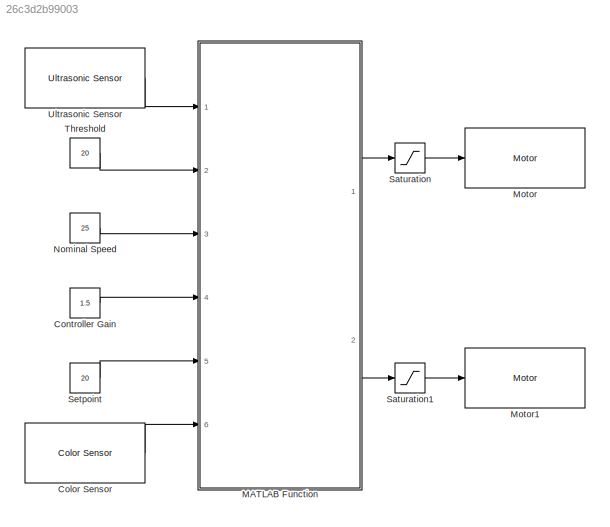
MODEL slx_26c3d2b99003
KIND model
CONFIG AbsTol = auto
CONFIG EnableMultiTasking = off
CONFIG FixedStep = auto
CONFIG MaxStep = auto
CONFIG MinStep = auto
CONFIG RelTol = 1e-3
CONFIG SampleTimeConstraint = Unconstrained
CONFIG Solver = VariableStepAuto
CONFIG SolverName = VariableStepAuto
CONFIG StartTime = 0.0
CONFIG StopTime = 10.0
BLOCK [Reference] Color Sensor  REF=legoev3lib/Color Sensor
  Ports = [0, 1]
  SourceBlock = legoev3lib/Color Sensor
  SourceType = LEGO MINDSTORMS EV3 Color Sensor
BLOCK [Constant] Controller Gain 
  Value = 1.5
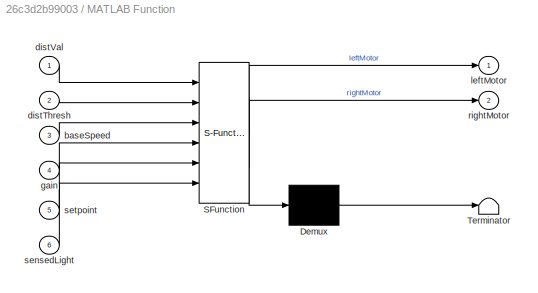
BLOCK [SubSystem] MATLAB Function
  ErrorFcn = Stateflow.Translate.translate
  PermitHierarchicalResolution = ExplicitOnly
  Ports = [6, 2]
  RequestExecContextInheritance = off
  SFBlockType = MATLAB Function
  TreatAsAtomicUnit = on
  Variant = off
BLOCK [Demux] MATLAB Function/ Demux 
  Outputs = 1
  Ports = [1, 1]
BLOCK [S-Function] MATLAB Function/ SFunction 
  EnableBusSupport = off
  FunctionName = sf_sfun
  PortCounts = [6 3]
  Ports = [6, 3]
  SFcnIsStateOwnerBlock = off
  SFunctionDeploymentMode = off
  Tag = Stateflow S-Function control 2
BLOCK [Terminator] MATLAB Function/ Terminator 
BLOCK [Inport] MATLAB Function/baseSpeed
  IconDisplay = Port number
  Port = 3
BLOCK [Inport] MATLAB Function/distThresh
  IconDisplay = Port number
  Port = 2
BLOCK [Inport] MATLAB Function/distVal
  IconDisplay = Port number
BLOCK [Inport] MATLAB Function/gain
  IconDisplay = Port number
  Port = 4
BLOCK [Outport] MATLAB Function/leftMotor
  IconDisplay = Port number
BLOCK [Outport] MATLAB Function/rightMotor
  IconDisplay = Port number
  Port = 2
BLOCK [Inport] MATLAB Function/sensedLight
  IconDisplay = Port number
  Port = 6
BLOCK [Inport] MATLAB Function/setpoint
  IconDisplay = Port number
  Port = 5
BLOCK [Reference] Motor  REF=legoev3lib/Motor
  Ports = [1]
  SourceBlock = legoev3lib/Motor
  SourceType = LEGO MINDSTORMS EV3 Motor
BLOCK [Reference] Motor1  REF=legoev3lib/Motor
  Ports = [1]
  SourceBlock = legoev3lib/Motor
  SourceType = LEGO MINDSTORMS EV3 Motor
BLOCK [Constant] Nominal Speed 
  Value = 25
BLOCK [Saturate] Saturation
  InputPortMap = u0
  LowerLimit = -100
  Ports = [1, 1]
  UpperLimit = 100
BLOCK [Saturate] Saturation1
  InputPortMap = u0
  LowerLimit = -100
  Ports = [1, 1]
  UpperLimit = 100
BLOCK [Constant] Setpoint
  Value = 20
BLOCK [Constant] Threshold 
  Value = 20
BLOCK [Reference] Ultrasonic Sensor  REF=legoev3lib/Ultrasonic Sensor
  Ports = [0, 1]
  SourceBlock = legoev3lib/Ultrasonic Sensor
  SourceType = LEGO MINDSTORMS EV3 Ultrasonic Sensor
LINE Color Sensor:1 -> MATLAB Function:6
LINE Controller Gain :1 -> MATLAB Function:4
LINE MATLAB Function:1 -> Saturation:1
LINE MATLAB Function:2 -> Saturation1:1
LINE Nominal Speed :1 -> MATLAB Function:3
LINE Saturation1:1 -> Motor1:1
LINE Saturation:1 -> Motor:1
LINE Setpoint:1 -> MATLAB Function:5
LINE Threshold :1 -> MATLAB Function:2
LINE Ultrasonic Sensor:1 -> MATLAB Function:1
CHART MATLAB Function states=1 transitions=1
  STATE_LABEL 'eML_blk_kernel()'
  STATE_LABEL 'SCRIPT:\nfunction [leftMotor, rightMotor] = control(distVal, distThresh, baseSpeed, gain, setpoint, sensedLight)\n    %#codegen\n    if distVal > distThresh % Compare obstruction distance to threshold\n         err = sensedLight - setpoint; % Line following logic\n         leftMotor = baseSpeed - gain*err;\n         rightMotor = baseSpeed + gain*err;\n    else\n         leftMotor = uint8(0); % Collision a...<+50ch>'
